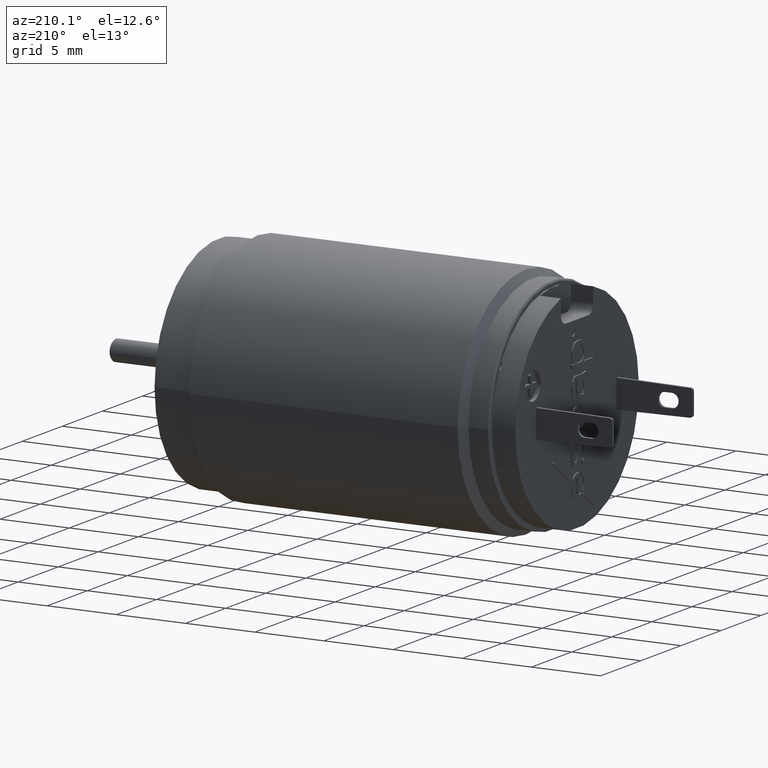
[diagram: clean part render]
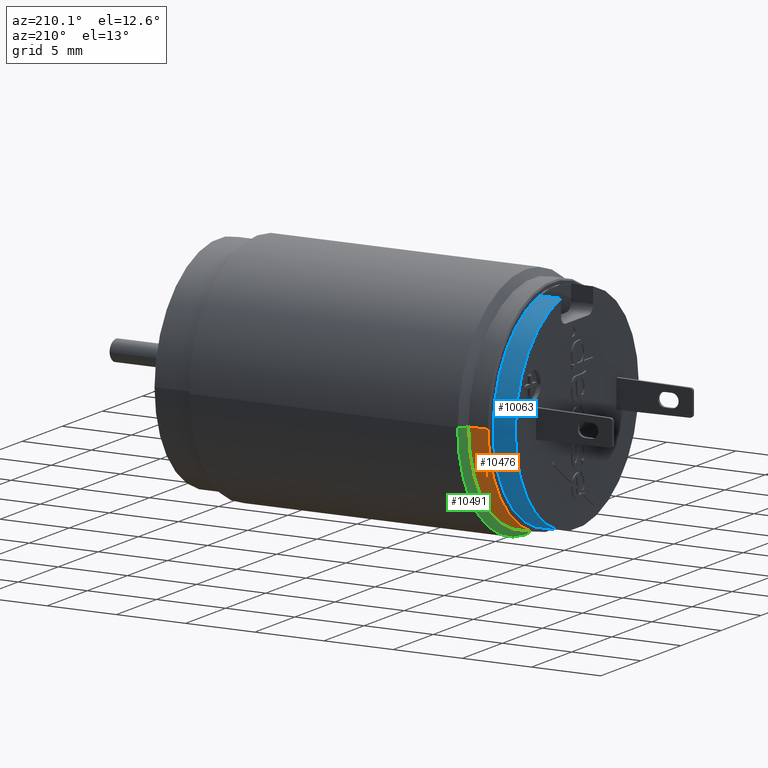
[diagram: same view with three faces highlighted in distinct colors, each labeled with its STEP entity id]
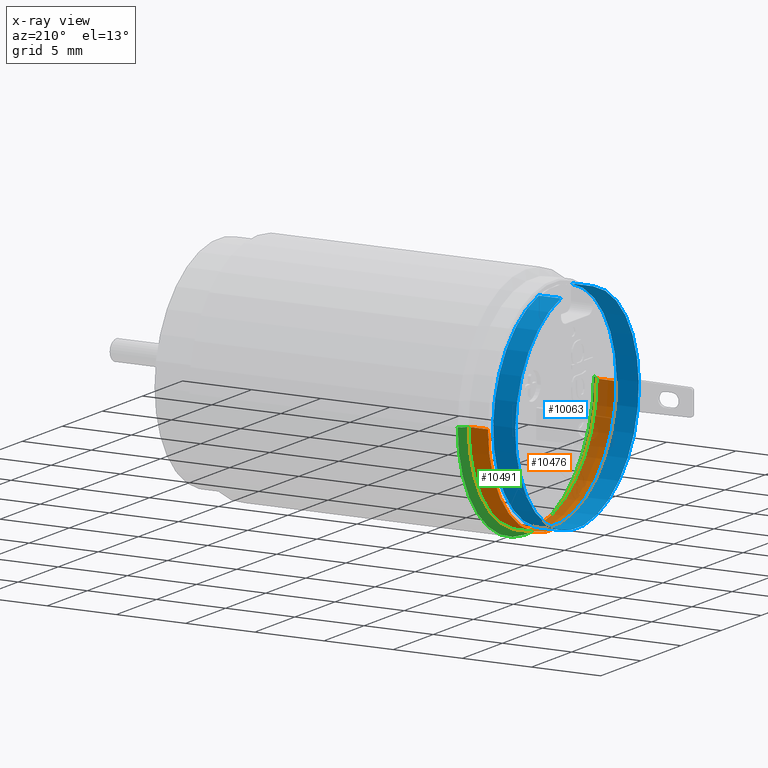
[diagram: x-ray of the same camera — body ghosted, the three highlighted faces saturated]
A machine part, auxiliary view with three faces highlighted in distinct colors.
The next image is the same camera in x-ray (body ghosted, the three faces saturated) — at least one of them is partly hidden behind the body in this view.
Their STEP definitions:

[orange] entity #10476 — the highlighted cylindrical surface (partial cylindrical patch) has radius 8 mm, axis along (-1, 0, 0).
#3491=DIRECTION('',(-9.999999999998E-1,6.750705977795E-7,-1.794625508151E-9));
#3492=VECTOR('',#3491,1.400000945432E0);
#3493=CARTESIAN_POINT('',(-2.27E1,8.E0,0.E0));
#3494=LINE('',#3493,#3492);
#3500=DIRECTION('',(-9.999999999998E-1,-6.750705996827E-7,1.794624953040E-9));
#3501=VECTOR('',#3500,1.400000945432E0);
#3502=CARTESIAN_POINT('',(-2.27E1,-8.E0,0.E0));
#3503=LINE('',#3502,#3501);
#3504=CARTESIAN_POINT('',(-2.409999748412E1,0.E0,0.E0));
#3505=DIRECTION('',(-1.E0,0.E0,0.E0));
#3506=DIRECTION('',(0.E0,1.E0,0.E0));
#3507=AXIS2_PLACEMENT_3D('',#3504,#3505,#3506);
#3509=CARTESIAN_POINT('',(-2.27E1,0.E0,0.E0));
#3510=DIRECTION('',(-1.E0,0.E0,0.E0));
#3511=DIRECTION('',(0.E0,1.E0,0.E0));
#3512=AXIS2_PLACEMENT_3D('',#3509,#3510,#3511);
#4400=CARTESIAN_POINT('',(-2.27E1,8.E0,0.E0));
#4401=VERTEX_POINT('',#4400);
#4402=CARTESIAN_POINT('',(-2.27E1,-8.E0,0.E0));
#4403=VERTEX_POINT('',#4402);
#4416=CARTESIAN_POINT('',(-2.409999748412E1,8.E0,0.E0));
#4417=CARTESIAN_POINT('',(-2.409999748412E1,-8.E0,0.E0));
#4418=VERTEX_POINT('',#4416);
#4419=VERTEX_POINT('',#4417);
#10464=CARTESIAN_POINT('',(9.17E0,0.E0,0.E0));
#10465=DIRECTION('',(-1.E0,0.E0,0.E0));
#10466=DIRECTION('',(0.E0,1.E0,0.E0));
#10467=AXIS2_PLACEMENT_3D('',#10464,#10465,#10466);
#10468=CYLINDRICAL_SURFACE('',#10467,8.E0);
#10469=ORIENTED_EDGE('',*,*,#10429,.T.);
#10470=ORIENTED_EDGE('',*,*,#10459,.F.);
#10472=ORIENTED_EDGE('',*,*,#10471,.F.);
#10473=ORIENTED_EDGE('',*,*,#10455,.T.);
#10474=EDGE_LOOP('',(#10469,#10470,#10472,#10473));
#10475=FACE_OUTER_BOUND('',#10474,.F.);
#10476=ADVANCED_FACE('',(#10475),#10468,.T.);
#3508=CIRCLE('',#3507,8.E0);
#3513=CIRCLE('',#3512,8.E0);
#10429=EDGE_CURVE('',#4418,#4419,#3508,.T.);
#10455=EDGE_CURVE('',#4401,#4418,#3494,.T.);
#10459=EDGE_CURVE('',#4403,#4419,#3503,.T.);
#10471=EDGE_CURVE('',#4401,#4403,#3513,.T.);

[blue] entity #10063 — the highlighted cylindrical surface (partial cylindrical patch) has radius 7.7 mm, axis along (-1, 0, 0).
#3175=CARTESIAN_POINT('',(-2.59E1,0.E0,0.E0));
#3176=DIRECTION('',(-1.E0,0.E0,0.E0));
#3177=DIRECTION('',(0.E0,2.597402597403E-1,9.656785166245E-1));
#3178=AXIS2_PLACEMENT_3D('',#3175,#3176,#3177);
#3180=DIRECTION('',(-1.E0,0.E0,0.E0));
#3181=VECTOR('',#3180,1.6E0);
#3182=CARTESIAN_POINT('',(-2.43E1,-2.E0,7.435724578008E0));
#3183=LINE('',#3182,#3181);
#3184=CARTESIAN_POINT('',(-2.43E1,0.E0,0.E0));
#3185=DIRECTION('',(1.E0,0.E0,0.E0));
#3186=DIRECTION('',(0.E0,-2.597402597403E-1,9.656785166245E-1));
#3187=AXIS2_PLACEMENT_3D('',#3184,#3185,#3186);
#3189=DIRECTION('',(-1.E0,0.E0,0.E0));
#3190=VECTOR('',#3189,1.6E0);
#3191=CARTESIAN_POINT('',(-2.43E1,2.E0,7.435724578008E0));
#3192=LINE('',#3191,#3190);
#4384=CARTESIAN_POINT('',(-2.43E1,2.E0,7.435724578008E0));
#4385=VERTEX_POINT('',#4384);
#4386=CARTESIAN_POINT('',(-2.43E1,-2.E0,7.435724578008E0));
#4387=VERTEX_POINT('',#4386);
#4388=CARTESIAN_POINT('',(-2.59E1,2.E0,7.435724578008E0));
#4390=VERTEX_POINT('',#4388);
#4398=CARTESIAN_POINT('',(-2.59E1,-2.E0,7.435724578008E0));
#4399=VERTEX_POINT('',#4398);
#10051=CARTESIAN_POINT('',(9.17E0,0.E0,0.E0));
#10052=DIRECTION('',(-1.E0,0.E0,0.E0));
#10053=DIRECTION('',(0.E0,1.E0,0.E0));
#10054=AXIS2_PLACEMENT_3D('',#10051,#10052,#10053);
#10055=CYLINDRICAL_SURFACE('',#10054,7.7E0);
#10056=ORIENTED_EDGE('',*,*,#5491,.T.);
#10058=ORIENTED_EDGE('',*,*,#10057,.F.);
#10059=ORIENTED_EDGE('',*,*,#10018,.T.);
#10060=ORIENTED_EDGE('',*,*,#10007,.T.);
#10061=EDGE_LOOP('',(#10056,#10058,#10059,#10060));
#10062=FACE_OUTER_BOUND('',#10061,.F.);
#10063=ADVANCED_FACE('',(#10062),#10055,.T.);
#3179=CIRCLE('',#3178,7.7E0);
#3188=CIRCLE('',#3187,7.7E0);
#5491=EDGE_CURVE('',#4390,#4399,#3179,.T.);
#10007=EDGE_CURVE('',#4385,#4390,#3192,.T.);
#10018=EDGE_CURVE('',#4387,#4385,#3188,.T.);
#10057=EDGE_CURVE('',#4387,#4399,#3183,.T.);

[green] entity #10491 — the highlighted conical surface has half-angle 45 deg.
#3509=CARTESIAN_POINT('',(-2.27E1,0.E0,0.E0));
#3510=DIRECTION('',(-1.E0,0.E0,0.E0));
#3511=DIRECTION('',(0.E0,1.E0,0.E0));
#3512=AXIS2_PLACEMENT_3D('',#3509,#3510,#3511);
#3514=CARTESIAN_POINT('',(-2.22E1,0.E0,0.E0));
#3515=DIRECTION('',(-1.E0,0.E0,0.E0));
#3516=DIRECTION('',(0.E0,1.E0,0.E0));
#3517=AXIS2_PLACEMENT_3D('',#3514,#3515,#3516);
#3519=DIRECTION('',(-7.071067811865E-1,-7.071067811866E-1,0.E0));
#3520=VECTOR('',#3519,7.071067811866E-1);
#3521=CARTESIAN_POINT('',(-2.22E1,8.5E0,0.E0));
#3522=LINE('',#3521,#3520);
#3528=DIRECTION('',(-7.071067811865E-1,7.071067811866E-1,0.E0));
#3529=VECTOR('',#3528,7.071067811866E-1);
#3530=CARTESIAN_POINT('',(-2.22E1,-8.5E0,0.E0));
#3531=LINE('',#3530,#3529);
#4143=CARTESIAN_POINT('',(-2.22E1,8.5E0,0.E0));
#4145=VERTEX_POINT('',#4143);
#4147=CARTESIAN_POINT('',(-2.22E1,-8.5E0,0.E0));
#4149=VERTEX_POINT('',#4147);
#4400=CARTESIAN_POINT('',(-2.27E1,8.E0,0.E0));
#4401=VERTEX_POINT('',#4400);
#4402=CARTESIAN_POINT('',(-2.27E1,-8.E0,0.E0));
#4403=VERTEX_POINT('',#4402);
#10477=CARTESIAN_POINT('',(-2.245E1,0.E0,0.E0));
#10478=DIRECTION('',(1.E0,0.E0,0.E0));
#10479=DIRECTION('',(0.E0,-1.E0,0.E0));
#10480=AXIS2_PLACEMENT_3D('',#10477,#10478,#10479);
#10481=CONICAL_SURFACE('',#10480,8.25E0,4.5E1);
#10483=ORIENTED_EDGE('',*,*,#10482,.T.);
#10484=ORIENTED_EDGE('',*,*,#10471,.T.);
#10486=ORIENTED_EDGE('',*,*,#10485,.F.);
#10488=ORIENTED_EDGE('',*,*,#10487,.F.);
#10489=EDGE_LOOP('',(#10483,#10484,#10486,#10488));
#10490=FACE_OUTER_BOUND('',#10489,.F.);
#10491=ADVANCED_FACE('',(#10490),#10481,.T.);
#3513=CIRCLE('',#3512,8.E0);
#3518=CIRCLE('',#3517,8.5E0);
#10471=EDGE_CURVE('',#4401,#4403,#3513,.T.);
#10482=EDGE_CURVE('',#4145,#4401,#3522,.T.);
#10485=EDGE_CURVE('',#4149,#4403,#3531,.T.);
#10487=EDGE_CURVE('',#4145,#4149,#3518,.T.);